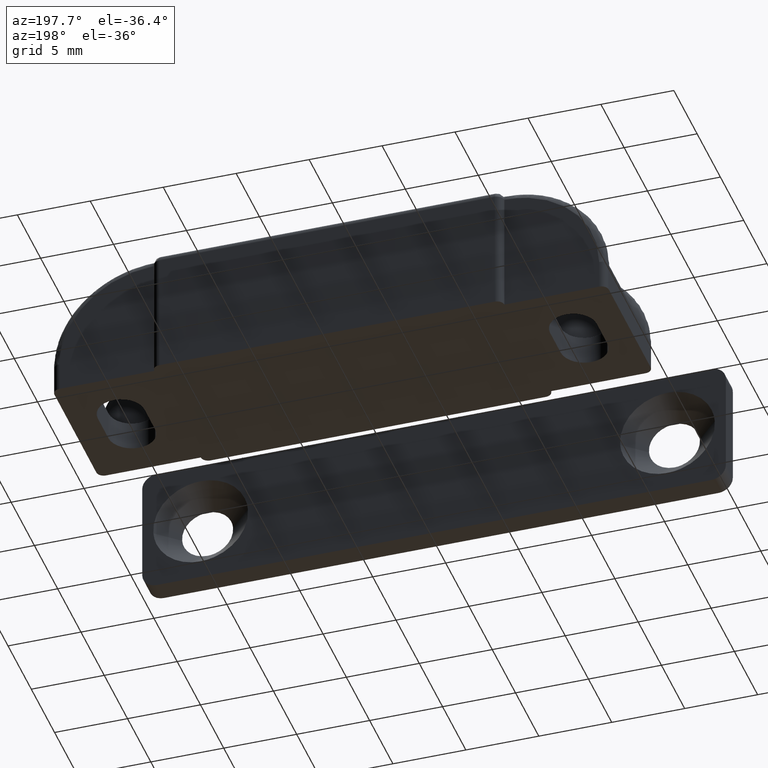
[diagram: clean part render]
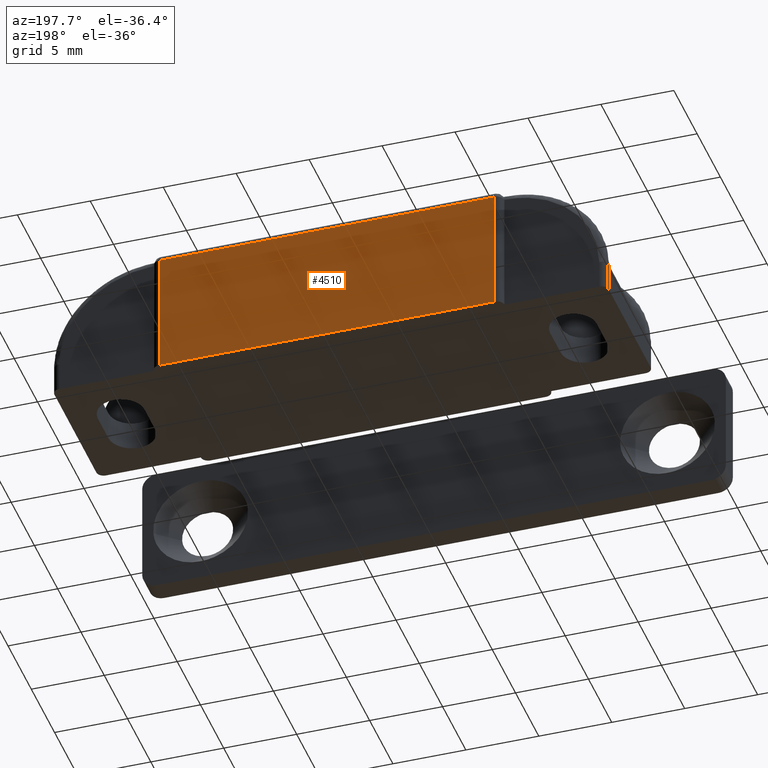
[diagram: same view with one face highlighted and labeled with its STEP entity id]
A machine part, auxiliary view. The second image highlights one B-rep face of the part: STEP entity #4510.
In plain terms, the highlighted face is a freeform B-spline surface patch.
Its self-contained STEP definition (entity closure, byte-faithful):
#4010=CARTESIAN_POINT('',(11.499999999999799,5.500000000000000,8.500000000000000));
#4011=VERTEX_POINT('',#4010);
#4115=CARTESIAN_POINT('',(11.499999999999799,5.500000000000000,0.0));
#4116=VERTEX_POINT('',#4115);
#4132=CARTESIAN_POINT('',(11.499999999999799,5.500000000000000,8.500000000000000));
#4133=CARTESIAN_POINT('',(11.499999999999799,5.500000000000000,0.0));
#4134=QUASI_UNIFORM_CURVE('',1,(#4132,#4133),.UNSPECIFIED.,.F.,.U.);
#4135=EDGE_CURVE('',#4011,#4116,#4134,.T.);
#4160=CARTESIAN_POINT('',(-11.500000000000000,5.500000000000000,8.500000000000000));
#4161=VERTEX_POINT('',#4160);
#4177=CARTESIAN_POINT('',(-11.500000000000000,5.500000000000000,8.500000000000000));
#4178=CARTESIAN_POINT('',(11.499999999999799,5.500000000000000,8.500000000000000));
#4179=QUASI_UNIFORM_CURVE('',1,(#4177,#4178),.UNSPECIFIED.,.F.,.U.);
#4180=EDGE_CURVE('',#4161,#4011,#4179,.T.);
#4302=CARTESIAN_POINT('',(-11.500000000000000,5.500000000000000,0.0));
#4303=VERTEX_POINT('',#4302);
#4323=CARTESIAN_POINT('',(-11.500000000000000,5.500000000000000,0.0));
#4324=CARTESIAN_POINT('',(-11.500000000000000,5.500000000000000,8.500000000000000));
#4325=QUASI_UNIFORM_CURVE('',1,(#4323,#4324),.UNSPECIFIED.,.F.,.U.);
#4326=EDGE_CURVE('',#4303,#4161,#4325,.T.);
#4495=CARTESIAN_POINT('',(-12.648849955421531,5.500000000000000,-0.424574983525351));
#4496=CARTESIAN_POINT('',(12.648850572329410,5.500000000000000,-0.424574983525351));
#4497=CARTESIAN_POINT('',(-12.648849955421531,5.500000000000000,8.924575211513115));
#4498=CARTESIAN_POINT('',(12.648850572329410,5.500000000000000,8.924575211513115));
#4499=B_SPLINE_SURFACE_WITH_KNOTS('',1,1,((#4495,#4497),(#4496,#4498)),.UNSPECIFIED.,.F.,.F.,.U.,(2,2),(2,2),(0.0,25.297700527750941),(0.0,9.349150195038465),.UNSPECIFIED.);
#4500=ORIENTED_EDGE('',*,*,#4180,.T.);
#4501=ORIENTED_EDGE('',*,*,#4135,.T.);
#4502=CARTESIAN_POINT('',(11.499999999999799,5.500000000000000,0.0));
#4503=CARTESIAN_POINT('',(-11.500000000000000,5.500000000000000,0.0));
#4504=QUASI_UNIFORM_CURVE('',1,(#4502,#4503),.UNSPECIFIED.,.F.,.U.);
#4505=EDGE_CURVE('',#4116,#4303,#4504,.T.);
#4506=ORIENTED_EDGE('',*,*,#4505,.T.);
#4507=ORIENTED_EDGE('',*,*,#4326,.T.);
#4508=EDGE_LOOP('',(#4500,#4501,#4506,#4507));
#4509=FACE_OUTER_BOUND('',#4508,.T.);
#4510=ADVANCED_FACE('',(#4509),#4499,.F.);